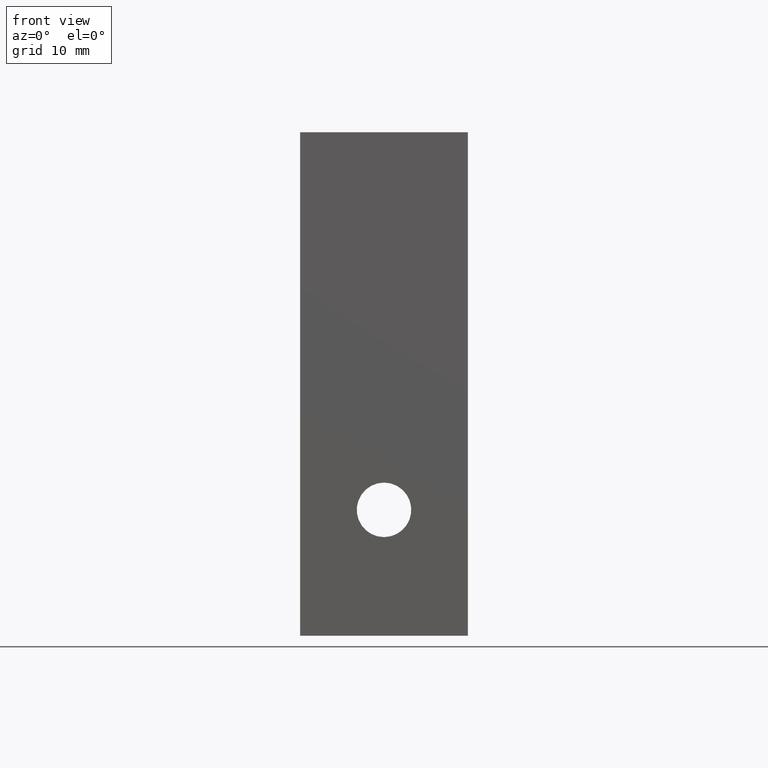
[diagram: clean part render]
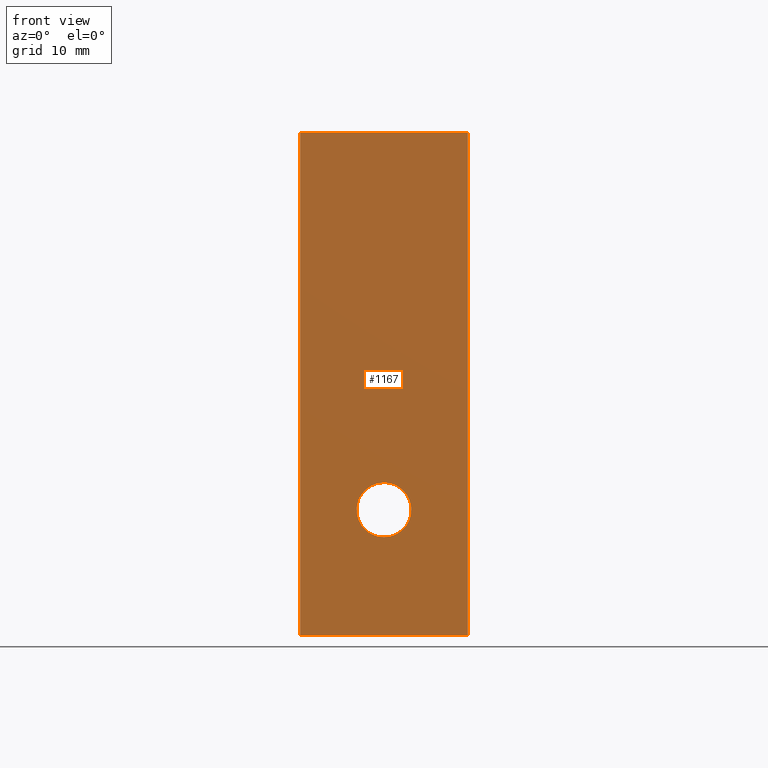
[diagram: same view with one face highlighted and labeled with its STEP entity id]
A machine part, front view. The second image highlights one B-rep face of the part: STEP entity #1167.
In plain terms, the highlighted planar face has unit normal (0, 1, 0).
Its self-contained STEP definition (entity closure, byte-faithful):
#13 = PLANE ( 'NONE',  #767 ) ;
#14 = CARTESIAN_POINT ( 'NONE',  ( 0.0000000000000000000, 0.0000000000000000000, -60.00000000000000000 ) ) ;
#15 = DIRECTION ( 'NONE',  ( 0.0000000000000000000, 1.000000000000000000, 0.0000000000000000000 ) ) ;
#16 = DIRECTION ( 'NONE',  ( 0.0000000000000000000, 0.0000000000000000000, 1.000000000000000000 ) ) ;
#111 = EDGE_CURVE ( 'NONE', #980, #963, #1272, .T. ) ;
#133 = FACE_BOUND ( 'NONE', #1188, .T. ) ;
#134 = FACE_OUTER_BOUND ( 'NONE', #613, .T. ) ;
#298 = CARTESIAN_POINT ( 'NONE',  ( 10.00000000000000000, 0.0000000000000000000, -60.00000000000000000 ) ) ;
#299 = DIRECTION ( 'NONE',  ( -1.000000000000000000, -0.0000000000000000000, -0.0000000000000000000 ) ) ;
#356 = CARTESIAN_POINT ( 'NONE',  ( 20.00000000000000000, 0.0000000000000000000, -30.00000000000000000 ) ) ;
#357 = DIRECTION ( 'NONE',  ( 0.0000000000000000000, 0.0000000000000000000, 1.000000000000000000 ) ) ;
#358 = CARTESIAN_POINT ( 'NONE',  ( 10.00000000000000000, 0.0000000000000000000, 0.0000000000000000000 ) ) ;
#359 = DIRECTION ( 'NONE',  ( -1.000000000000000000, 0.0000000000000000000, 0.0000000000000000000 ) ) ;
#360 = CARTESIAN_POINT ( 'NONE',  ( 0.0000000000000000000, 0.0000000000000000000, -30.00000000000000000 ) ) ;
#361 = DIRECTION ( 'NONE',  ( 0.0000000000000000000, 0.0000000000000000000, 1.000000000000000000 ) ) ;
#430 = CARTESIAN_POINT ( 'NONE',  ( 0.0000000000000000000, 0.0000000000000000000, -60.00000000000000000 ) ) ;
#434 = CARTESIAN_POINT ( 'NONE',  ( 20.00000000000000000, 0.0000000000000000000, -60.00000000000000000 ) ) ;
#460 = CARTESIAN_POINT ( 'NONE',  ( 10.00000000000000000, 0.0000000000000000000, -41.75000000000000000 ) ) ;
#477 = CARTESIAN_POINT ( 'NONE',  ( 10.00000000000000000, 0.0000000000000000000, -48.24999999999999300 ) ) ;
#480 = CARTESIAN_POINT ( 'NONE',  ( 0.0000000000000000000, 0.0000000000000000000, 0.0000000000000000000 ) ) ;
#483 = CARTESIAN_POINT ( 'NONE',  ( 20.00000000000000000, 0.0000000000000000000, 0.0000000000000000000 ) ) ;
#497 = CARTESIAN_POINT ( 'NONE',  ( 10.00000000000000000, 0.0000000000000000000, -45.00000000000000000 ) ) ;
#498 = DIRECTION ( 'NONE',  ( 0.0000000000000000000, -1.000000000000000000, -0.0000000000000000000 ) ) ;
#499 = DIRECTION ( 'NONE',  ( 0.0000000000000000000, 0.0000000000000000000, 1.000000000000000000 ) ) ;
#613 = EDGE_LOOP ( 'NONE', ( #1193, #1194, #1195, #1196 ) ) ;
#729 = AXIS2_PLACEMENT_3D ( 'NONE', #903, #904, #906 ) ;
#760 = AXIS2_PLACEMENT_3D ( 'NONE', #497, #498, #499 ) ;
#767 = AXIS2_PLACEMENT_3D ( 'NONE', #14, #15, #16 ) ;
#802 = EDGE_CURVE ( 'NONE', #899, #894, #1146, .T. ) ;
#830 = EDGE_CURVE ( 'NONE', #899, #986, #1131, .T. ) ;
#831 = EDGE_CURVE ( 'NONE', #986, #983, #1122, .T. ) ;
#832 = EDGE_CURVE ( 'NONE', #894, #983, #1128, .T. ) ;
#894 = VERTEX_POINT ( 'NONE', #430 ) ;
#899 = VERTEX_POINT ( 'NONE', #434 ) ;
#903 = CARTESIAN_POINT ( 'NONE',  ( 10.00000000000000000, 0.0000000000000000000, -45.00000000000000000 ) ) ;
#904 = DIRECTION ( 'NONE',  ( 0.0000000000000000000, -1.000000000000000000, -0.0000000000000000000 ) ) ;
#906 = DIRECTION ( 'NONE',  ( 0.0000000000000000000, 0.0000000000000000000, 1.000000000000000000 ) ) ;
#963 = VERTEX_POINT ( 'NONE', #460 ) ;
#980 = VERTEX_POINT ( 'NONE', #477 ) ;
#983 = VERTEX_POINT ( 'NONE', #480 ) ;
#986 = VERTEX_POINT ( 'NONE', #483 ) ;
#998 = EDGE_CURVE ( 'NONE', #963, #980, #1065, .T. ) ;
#1065 = CIRCLE ( 'NONE', #760, 3.249999999999996000 ) ;
#1119 = VECTOR ( 'NONE', #361, 1000.000000000000000 ) ;
#1122 = LINE ( 'NONE', #358, #1129 ) ;
#1128 = LINE ( 'NONE', #360, #1119 ) ;
#1129 = VECTOR ( 'NONE', #359, 1000.000000000000000 ) ;
#1130 = VECTOR ( 'NONE', #357, 1000.000000000000000 ) ;
#1131 = LINE ( 'NONE', #356, #1130 ) ;
#1142 = VECTOR ( 'NONE', #299, 1000.000000000000000 ) ;
#1146 = LINE ( 'NONE', #298, #1142 ) ;
#1167 = ADVANCED_FACE ( 'NONE', ( #133, #134 ), #13, .F. ) ;
#1188 = EDGE_LOOP ( 'NONE', ( #1191, #1192 ) ) ;
#1191 = ORIENTED_EDGE ( 'NONE', *, *, #998, .F. ) ;
#1192 = ORIENTED_EDGE ( 'NONE', *, *, #111, .F. ) ;
#1193 = ORIENTED_EDGE ( 'NONE', *, *, #802, .F. ) ;
#1194 = ORIENTED_EDGE ( 'NONE', *, *, #830, .T. ) ;
#1195 = ORIENTED_EDGE ( 'NONE', *, *, #831, .T. ) ;
#1196 = ORIENTED_EDGE ( 'NONE', *, *, #832, .F. ) ;
#1272 = CIRCLE ( 'NONE', #729, 3.249999999999996000 ) ;